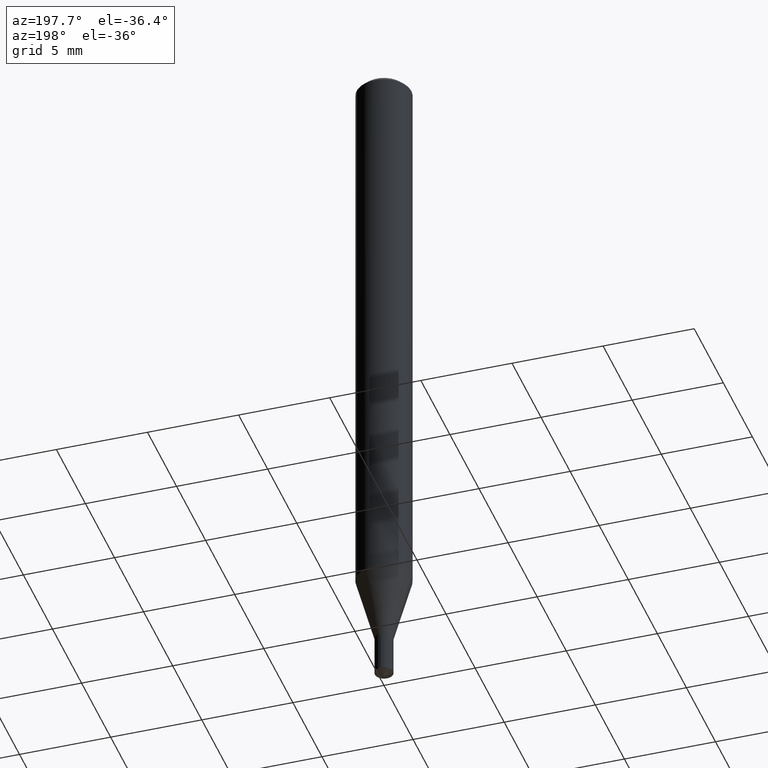
[diagram: clean part render]
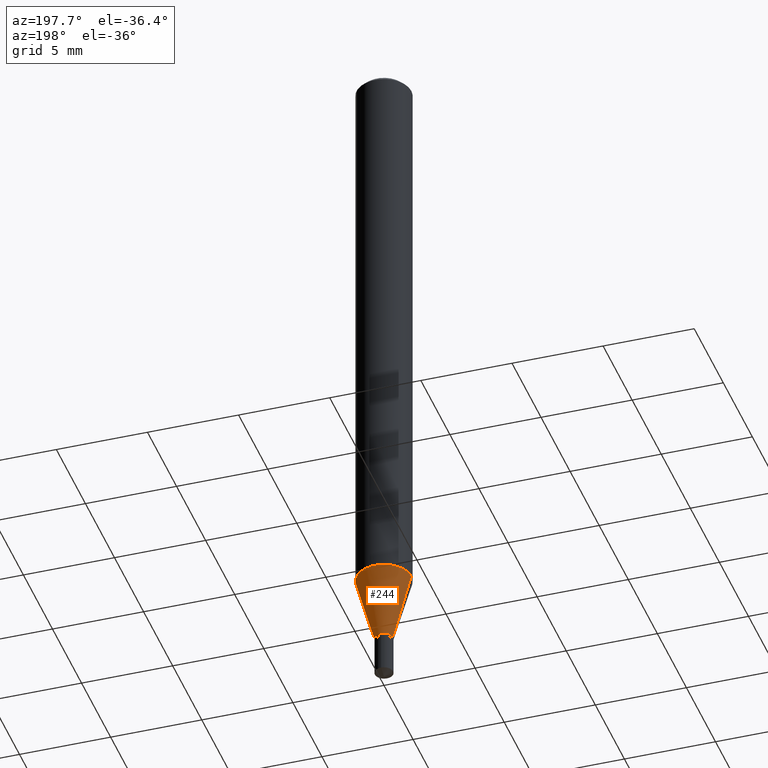
[diagram: same view with one face highlighted and labeled with its STEP entity id]
A machine part, auxiliary view. The second image highlights one B-rep face of the part: STEP entity #244.
In plain terms, the highlighted conical surface has half-angle 15 deg.
Its self-contained STEP definition (entity closure, byte-faithful):
#2 = CIRCLE ( 'NONE', #442, 0.05905000000000015098 ) ;
#13 = LINE ( 'NONE', #462, #407 ) ;
#17 = EDGE_CURVE ( 'NONE', #138, #446, #443, .T. ) ;
#21 = AXIS2_PLACEMENT_3D ( 'NONE', #284, #36, #214 ) ;
#36 = DIRECTION ( 'NONE',  ( -2.445468806185136597E-29, 3.491481338843145583E-15, 1.000000000000000000 ) ) ;
#53 = DIRECTION ( 'NONE',  ( -2.445468806185136597E-29, 3.491481338843145583E-15, 1.000000000000000000 ) ) ;
#123 = DIRECTION ( 'NONE',  ( -0.2588190451025214611, 5.211531920934551042E-15, 0.9659258262890682012 ) ) ;
#138 = VERTEX_POINT ( 'NONE', #359 ) ;
#158 = EDGE_CURVE ( 'NONE', #138, #331, #255, .T. ) ;
#174 = CARTESIAN_POINT ( 'NONE',  ( 0.05905000000000015098, -4.786275548690248872E-15, -1.252743800722164513 ) ) ;
#176 = CARTESIAN_POINT ( 'NONE',  ( 0.01969999999999999182, -5.024241646595286064E-15, -1.399599999999999955 ) ) ;
#202 = AXIS2_PLACEMENT_3D ( 'NONE', #390, #53, #325 ) ;
#204 = ORIENTED_EDGE ( 'NONE', *, *, #210, .T. ) ;
#210 = EDGE_CURVE ( 'NONE', #331, #427, #13, .T. ) ;
#214 = DIRECTION ( 'NONE',  ( 1.000000000000000000, -6.982962677686280910E-15, 0.000000000000000000 ) ) ;
#244 = ADVANCED_FACE ( 'NONE', ( #476 ), #336, .T. ) ;
#255 = CIRCLE ( 'NONE', #202, 0.01969999999999999182 ) ;
#261 = CARTESIAN_POINT ( 'NONE',  ( 3.063545886807862296E-29, -4.373931602572873162E-15, -1.252743800722164513 ) ) ;
#263 = ORIENTED_EDGE ( 'NONE', *, *, #17, .F. ) ;
#284 = CARTESIAN_POINT ( 'NONE',  ( 3.422678141136717106E-29, -4.886677281844866061E-15, -1.399599999999999955 ) ) ;
#290 = CARTESIAN_POINT ( 'NONE',  ( -0.01969999999999999182, -4.756127362515003660E-15, -1.399599999999999955 ) ) ;
#307 = ORIENTED_EDGE ( 'NONE', *, *, #158, .T. ) ;
#317 = ORIENTED_EDGE ( 'NONE', *, *, #488, .F. ) ;
#325 = DIRECTION ( 'NONE',  ( 1.000000000000000000, -6.982962677686280910E-15, 0.000000000000000000 ) ) ;
#329 = DIRECTION ( 'NONE',  ( 0.2588190451025214611, 1.565188264969621573E-15, 0.9659258262890682012 ) ) ;
#331 = VERTEX_POINT ( 'NONE', #290 ) ;
#336 = CONICAL_SURFACE ( 'NONE', #21, 0.01969999999999999182, 0.2617993877991501295 ) ;
#348 = CARTESIAN_POINT ( 'NONE',  ( -0.05905000000000015098, -3.954356117106533670E-15, -1.252743800722164513 ) ) ;
#359 = CARTESIAN_POINT ( 'NONE',  ( 0.01969999999999999182, -5.024241646595286064E-15, -1.399599999999999955 ) ) ;
#374 = DIRECTION ( 'NONE',  ( 1.000000000000000000, -6.982962677686271444E-15, 0.000000000000000000 ) ) ;
#390 = CARTESIAN_POINT ( 'NONE',  ( 3.422678141136717106E-29, -4.886677281844866061E-15, -1.399599999999999955 ) ) ;
#407 = VECTOR ( 'NONE', #123, 39.37007874015747433 ) ;
#419 = VECTOR ( 'NONE', #329, 39.37007874015747433 ) ;
#421 = DIRECTION ( 'NONE',  ( -2.445468806185136597E-29, 3.491481338843145583E-15, 1.000000000000000000 ) ) ;
#427 = VERTEX_POINT ( 'NONE', #348 ) ;
#442 = AXIS2_PLACEMENT_3D ( 'NONE', #261, #421, #374 ) ;
#443 = LINE ( 'NONE', #176, #419 ) ;
#446 = VERTEX_POINT ( 'NONE', #174 ) ;
#462 = CARTESIAN_POINT ( 'NONE',  ( -0.01969999999999999182, -4.746700362900126752E-15, -1.399599999999999955 ) ) ;
#467 = EDGE_LOOP ( 'NONE', ( #307, #204, #317, #263 ) ) ;
#476 = FACE_OUTER_BOUND ( 'NONE', #467, .T. ) ;
#488 = EDGE_CURVE ( 'NONE', #446, #427, #2, .T. ) ;